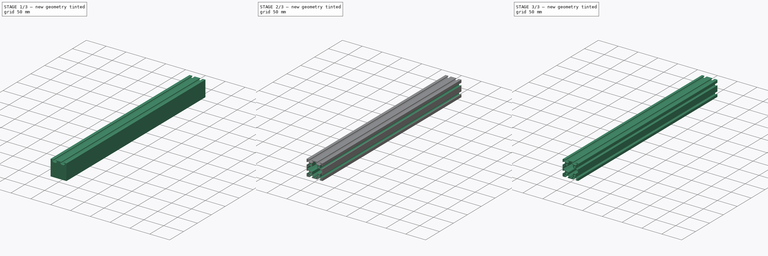
[diagram: build sequence overview — one tinted view per stage of 3, left to right]
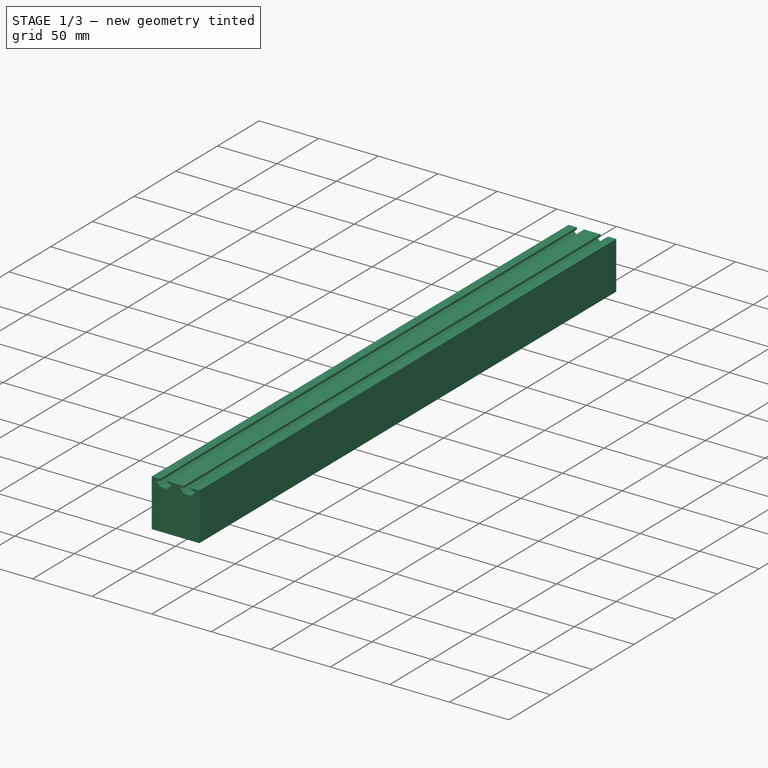
[diagram: stage 1 of 3 — iso view after this stage's code; geometry added in this stage tinted green]
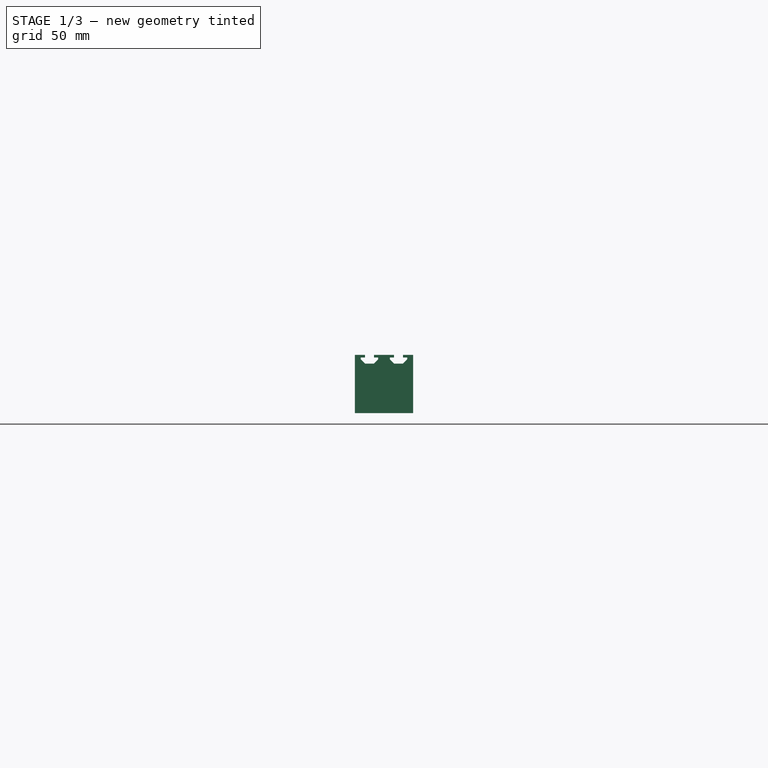
[diagram: stage 1 of 3 — front view after this stage's code; geometry added in this stage tinted green]
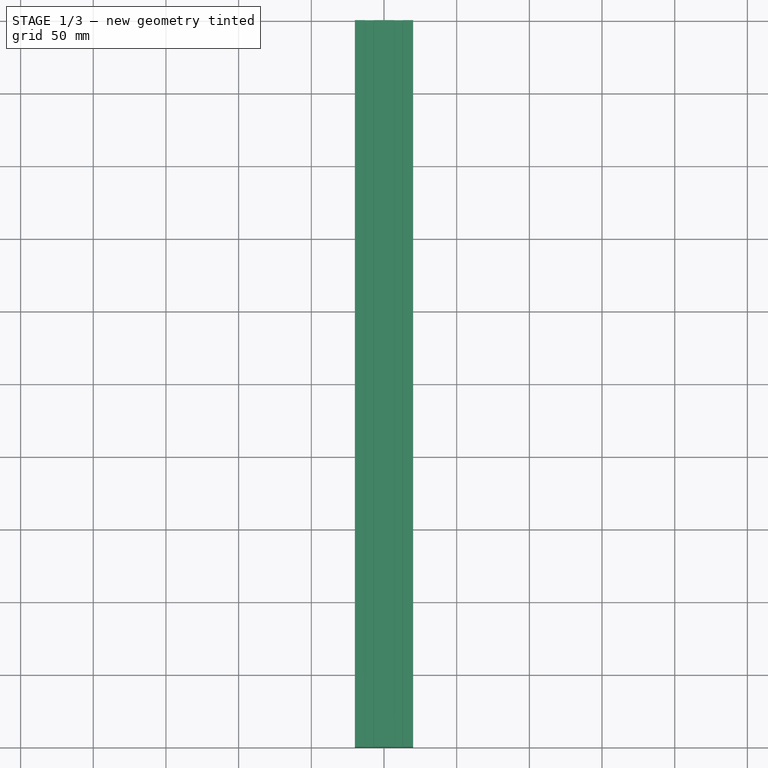
[diagram: stage 1 of 3 — top view after this stage's code; geometry added in this stage tinted green]
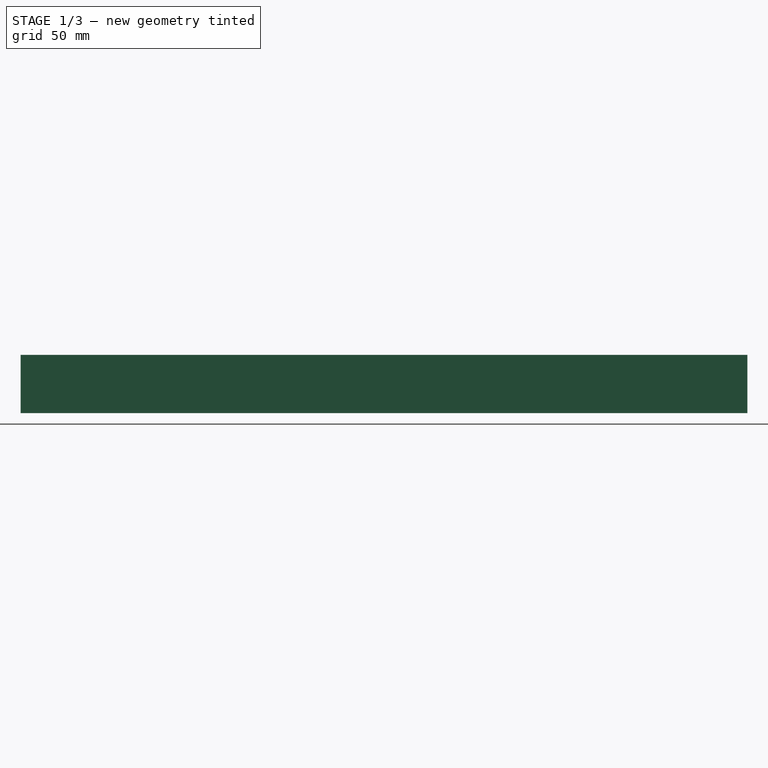
[diagram: stage 1 of 3 — right view after this stage's code; geometry added in this stage tinted green]
FCSTD DOCUMENT  (FreeCAD 0.21R33771 (Git))
Label: 4040 Extrusion
License: All rights reserved
LicenseURL: http://en.wikipedia.org/wiki/All_rights_reserved
objects: Sketcher::SketchObject×4, PartDesign::Pocket×3, PartDesign::Fillet×2, PartDesign::Pad×1, PartDesign::PolarPattern×1, PartDesign::Body×1
note: 18 computed .brp shape members not serialized (recipe doc carries the construction recipe); baked Part::Feature solids carry a one-line shape summary decoded from their .brp

FEATURE [Sketcher::SketchObject] Sketch012
  FullyConstrained = true
  MapMode = 5
  Placement = pos=(0,-250,5.6e-14) rot=(1,0,0;1.5708rad)
  sketch-geometry (8):
    g0: LineSegment StartX=-10 StartY=10 StartZ=0 EndX=10 EndY=10 EndZ=0
    g1: LineSegment StartX=10 StartY=10 StartZ=0 EndX=10 EndY=-10 EndZ=0
    g2: LineSegment StartX=10 StartY=-10 StartZ=0 EndX=-10 EndY=-10 EndZ=0
    g3: LineSegment StartX=-10 StartY=-10 StartZ=0 EndX=-10 EndY=10 EndZ=0
    g4: Circle CenterX=-10 CenterY=10 CenterZ=0 NormalX=0 NormalY=0 NormalZ=1 AngleXU=0 Radius=2.1
    g5: Circle CenterX=10 CenterY=10 CenterZ=0 NormalX=0 NormalY=0 NormalZ=1 AngleXU=0 Radius=2.1
    g6: Circle CenterX=10 CenterY=-10 CenterZ=0 NormalX=0 NormalY=0 NormalZ=1 AngleXU=0 Radius=2.1
    g7: Circle CenterX=-10 CenterY=-10 CenterZ=0 NormalX=0 NormalY=0 NormalZ=1 AngleXU=0 Radius=2.1
  constraints (19):
    c: Coincident(g0,g1)
    c: Coincident(g1,g2)
    c: Coincident(g2,g3)
    c: Coincident(g3,g0)
    c: Horizontal(g0)
    c: Horizontal(g2)
    c: Vertical(g1)
    c: Vertical(g3)
    c: Coincident(g4,g0)
    c: Coincident(g5,g0)
    c: Coincident(g6,g1)
    c: Coincident(g7,g2)
    c: Equal(g3,g0)
    c: Symmetric(g4,g6,g-1)
    c: DistanceX(g0,g0) = 20
    c: Equal(g7,g4)
    c: Equal(g4,g5)
    c: Equal(g5,g6)
    c: Diameter(g4) = 4.2
FEATURE [Sketcher::SketchObject] Sketch013
  FullyConstrained = true
  MapMode = 5
  Placement = pos=(0,0,0) rot=(1,0,0;1.5708rad)
  Support = -> [XZ_Plane008]
  sketch-geometry (4):
    g0: LineSegment StartX=-20 StartY=20 StartZ=0 EndX=20 EndY=20 EndZ=0
    g1: LineSegment StartX=20 StartY=20 StartZ=0 EndX=20 EndY=-20 EndZ=0
    g2: LineSegment StartX=20 StartY=-20 StartZ=0 EndX=-20 EndY=-20 EndZ=0
    g3: LineSegment StartX=-20 StartY=-20 StartZ=0 EndX=-20 EndY=20 EndZ=0
  constraints (11):
    c: Coincident(g0,g1)
    c: Coincident(g1,g2)
    c: Coincident(g2,g3)
    c: Coincident(g3,g0)
    c: Horizontal(g0)
    c: Horizontal(g2)
    c: Vertical(g1)
    c: Vertical(g3)
    c: Symmetric(g0,g1,g-1)
    c: Equal(g0,g3)
    c: DistanceX(g0,g0) = 40
FEATURE [PartDesign::Pad] Pad007
  Direction = (0,-1,-2e-16)
  Length = 500
  Length2 = 10
  Midplane = true
  Placement = pos=(0,0,0) rot=(1,0,0;1.5708rad)
  Profile = -> Sketch013
  ReferenceAxis = -> Sketch013 [N_Axis]
  Type = 0
FEATURE [Sketcher::SketchObject] Sketch014
  AttachmentOffset = pos=(-10,0,0) rot=(0,0,1;0rad)
  FullyConstrained = true
  MapMode = 5
  Placement = pos=(-10,0,0) rot=(1,0,0;1.5708rad)
  Support = -> [XZ_Plane008]
  sketch-geometry (23):
    g0: LineSegment StartX=-3.1 StartY=21 StartZ=0 EndX=3.1 EndY=21 EndZ=0
    g1: LineSegment StartX=3.1 StartY=21 StartZ=0 EndX=3.1 EndY=18.2 EndZ=0
    g2: LineSegment StartX=-3.1 StartY=18.2 StartZ=0 EndX=-3.1 EndY=21 EndZ=0
    g3: LineSegment StartX=-3.1 StartY=18.2 StartZ=0 EndX=-6 EndY=18.2 EndZ=0
    g4: LineSegment StartX=-6 StartY=18.2 StartZ=0 EndX=-6 EndY=17.0607 EndZ=0
    g5: LineSegment StartX=-6 StartY=17.0607 StartZ=0 EndX=-2.93934 EndY=14 EndZ=0
    g6: LineSegment StartX=-2.93934 StartY=14 StartZ=0 EndX=2.93934 EndY=14 EndZ=0
    g7: LineSegment StartX=2.93934 StartY=14 StartZ=0 EndX=6 EndY=17.0607 EndZ=0
    g8: LineSegment StartX=6 StartY=17.0607 StartZ=0 EndX=6 EndY=18.2 EndZ=0
    g9: LineSegment StartX=6 StartY=18.2 StartZ=0 EndX=3.1 EndY=18.2 EndZ=0
    g10: LineSegment StartX=-3.1 StartY=20 StartZ=0 EndX=3.1 EndY=20 EndZ=0
    g11: LineSegment StartX=0 StartY=10 StartZ=0 EndX=-10 EndY=20 EndZ=0
    g12: LineSegment StartX=-6 StartY=17.0607 StartZ=0 EndX=-6.53033 EndY=16.5303 EndZ=0
    g13: LineSegment StartX=16.9 StartY=21 StartZ=0 EndX=16.9 EndY=18.2 EndZ=0
    g14: LineSegment StartX=16.9 StartY=18.2 StartZ=0 EndX=14 EndY=18.2 EndZ=0
    g15: LineSegment StartX=14 StartY=18.2 StartZ=0 EndX=14 EndY=17.0607 EndZ=0
    g16: LineSegment StartX=14 StartY=17.0607 StartZ=0 EndX=17.0607 EndY=14 EndZ=0
    g17: LineSegment StartX=17.0607 StartY=14 StartZ=0 EndX=22.9393 EndY=14 EndZ=0
    g18: LineSegment StartX=22.9393 StartY=14 StartZ=0 EndX=26 EndY=17.0607 EndZ=0
    g19: LineSegment StartX=26 StartY=17.0607 StartZ=0 EndX=26 EndY=18.2 EndZ=0
    g20: LineSegment StartX=26 StartY=18.2 StartZ=0 EndX=23.1 EndY=18.2 EndZ=0
    g21: LineSegment StartX=23.1 StartY=18.2 StartZ=0 EndX=23.1 EndY=21 EndZ=0
    g22: LineSegment StartX=23.1 StartY=21 StartZ=0 EndX=16.9 EndY=21 EndZ=0
  constraints (70):
    c: Coincident(g0,g1)
    c: Coincident(g2,g0)
    c: Vertical(g1)
    c: Vertical(g2)
    c: Horizontal(g3)
    c: Coincident(g3,g4)
    c: Vertical(g4)
    c: Coincident(g4,g5)
    c: Coincident(g5,g6)
    c: Horizontal(g6)
    c: Coincident(g6,g7)
    c: Coincident(g7,g8)
    c: Vertical(g8)
    c: Coincident(g8,g9)
    c: Coincident(g9,g1)
    c: Horizontal(g9)
    c: Symmetric(g0,g0,g-2)
    c: DistanceX(g0,g0) = 6.2
    c: Coincident(g2,g3)
    c: Equal(g3,g9)
    c: Equal(g2,g1)
    c: Equal(g4,g8)
    c: Perpendicular(g5,g7)
    c: Equal(g5,g7)
    c: PointOnObject(g10,g2)
    c: PointOnObject(g10,g1)
    c: Horizontal(g10)
    c: DistanceY(g-1,g10) = 20
    c: DistanceY(g1,g10) = 1.8
    c: DistanceX(g3,g8) = 12
    c: DistanceY(g6,g10) = 6
    c: PointOnObject(g11,g-2)
    c: Horizontal(g11,g10)
    c: Parallel(g11,g5)
    c: DistanceX(g11,g-1) = 10
    c: Coincident(g12,g4)
    c: PointOnObject(g12,g11)
    c: Perpendicular(g11,g12)
    c: Distance(g12) = 0.75
    c: DistanceY(g10,g0) = 1
    c: Vertical(g13)
    c: Coincident(g13,g14)
    c: Horizontal(g14)
    c: Coincident(g14,g15)
    c: Vertical(g15)
    c: Coincident(g15,g16)
    c: Coincident(g16,g17)
    c: Horizontal(g17)
    c: Coincident(g17,g18)
    c: Coincident(g18,g19)
    c: Vertical(g19)
    c: Coincident(g19,g20)
    c: Horizontal(g20)
    c: Coincident(g20,g21)
    c: Vertical(g21)
    c: Coincident(g21,g22)
    c: Coincident(g22,g13)
    c: Horizontal(g22)
    c: Equal(g13,g1)
    c: Horizontal(g13,g0)
    c: Equal(g15,g19)
    c: Equal(g19,g8)
    c: Equal(g14,g20)
    c: Equal(g20,g9)
    c: Equal(g22,g0)
    c: Equal(g18,g16)
    c: Equal(g16,g7)
    c: Equal(g17,g6)
    c: DistanceX(g0,g13) = 20
    c: Equal(g21,g13)
FEATURE [PartDesign::Pocket] Pocket006
  BaseFeature = -> Pad007
  Direction = (0,1,2e-16)
  Length = 5
  Length2 = 5
  Midplane = true
  Placement = pos=(0,0,0) rot=(1,0,0;1.5708rad)
  Profile = -> Sketch014
  ReferenceAxis = -> Sketch014 [N_Axis]
  Type = 1
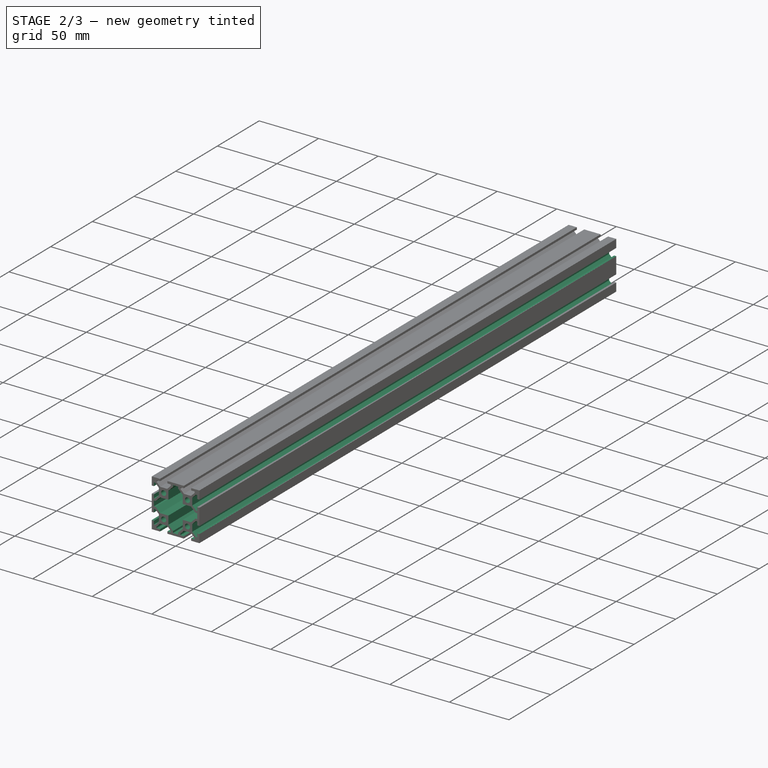
[diagram: stage 2 of 3 — iso view after this stage's code; geometry added in this stage tinted green]
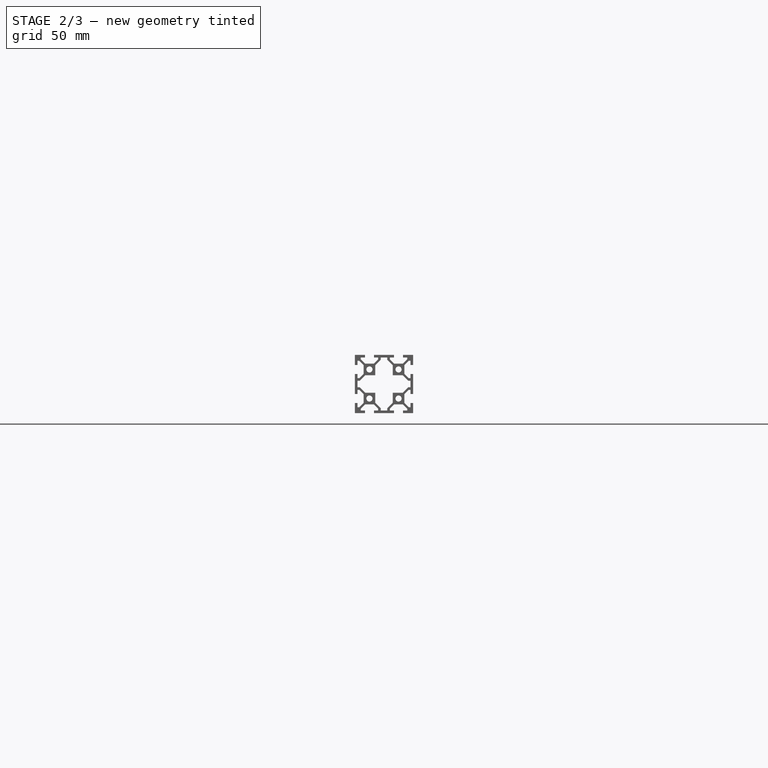
[diagram: stage 2 of 3 — front view after this stage's code; geometry added in this stage tinted green]
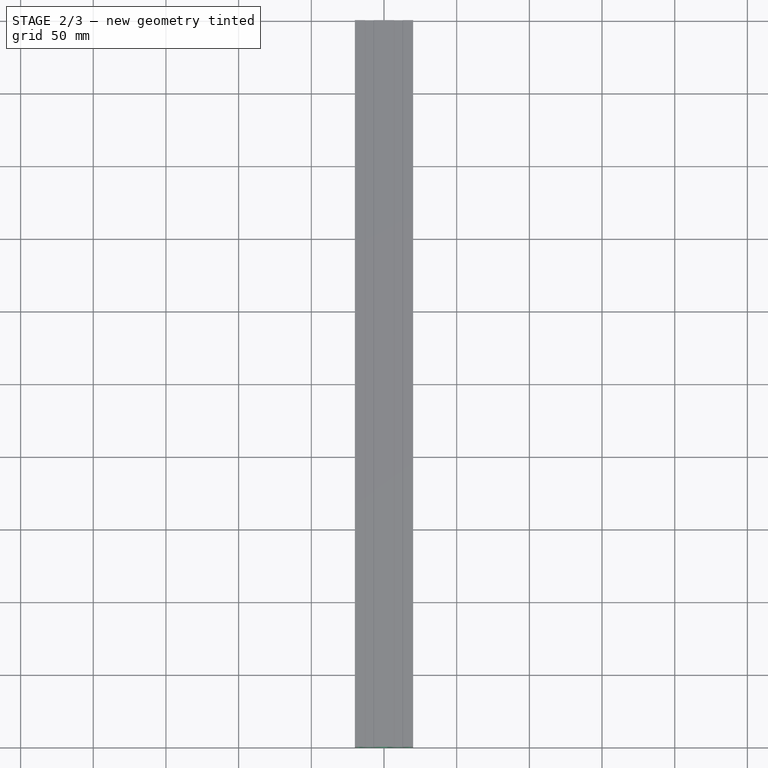
[diagram: stage 2 of 3 — top view after this stage's code; geometry added in this stage tinted green]
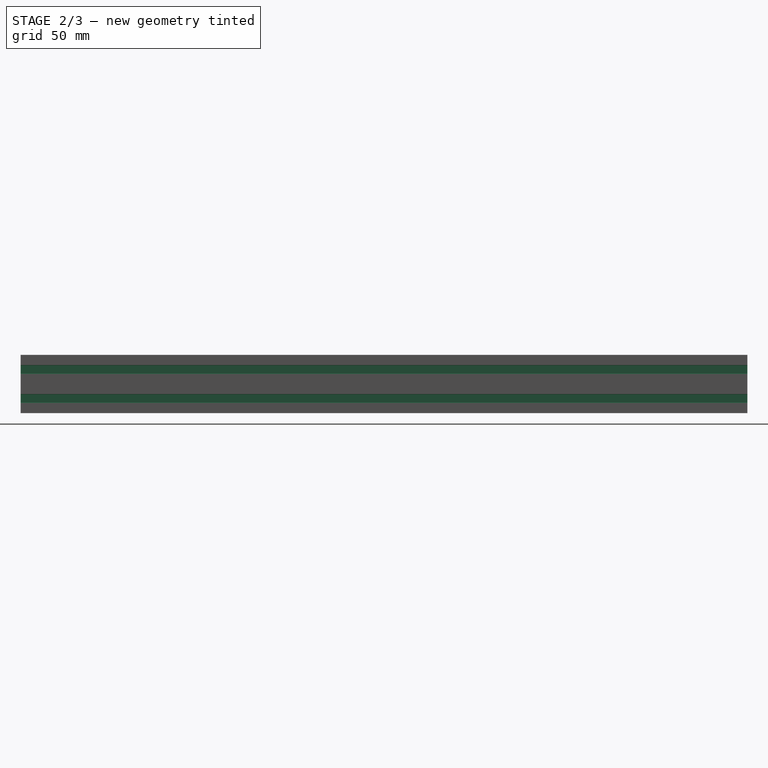
[diagram: stage 2 of 3 — right view after this stage's code; geometry added in this stage tinted green]
FEATURE [PartDesign::PolarPattern] PolarPattern001
  Angle = 360
  Axis = -> Y_Axis008
  BaseFeature = -> Pocket006
  Occurrences = 4
  Originals = -> [Pocket006]
  Placement = pos=(0,0,0) rot=(1,0,0;1.5708rad)
FEATURE [Sketcher::SketchObject] Sketch015
  ExternalGeometry = -> [PolarPattern001]
  FullyConstrained = true
  MapMode = 5
  Placement = pos=(0,0,0) rot=(1,0,0;1.5708rad)
  Support = -> [XZ_Plane008]
  sketch-geometry (30):
    g0: LineSegment StartX=2.2 StartY=18.2 StartZ=0 EndX=-2.2 EndY=18.2 EndZ=0
    g1: LineSegment StartX=-2.2 StartY=18.2 StartZ=0 EndX=-2.2 EndY=16.7393 EndZ=0
    g2: LineSegment StartX=-2.2 StartY=16.7393 StartZ=0 EndX=-6 EndY=12.9393 EndZ=0
    g3: LineSegment StartX=-6 StartY=12.9393 StartZ=0 EndX=-6 EndY=6 EndZ=0
    g4: LineSegment StartX=-6 StartY=6 StartZ=0 EndX=-12.9393 EndY=6 EndZ=0
    g5: LineSegment StartX=-12.9393 StartY=6 StartZ=0 EndX=-16.7393 EndY=2.2 EndZ=0
    g6: LineSegment StartX=-16.7393 StartY=2.2 StartZ=0 EndX=-18.2 EndY=2.2 EndZ=0
    g7: LineSegment StartX=-18.2 StartY=2.2 StartZ=0 EndX=-18.2 EndY=-2.2 EndZ=0
    g8: LineSegment StartX=-18.2 StartY=-2.2 StartZ=0 EndX=-16.7393 EndY=-2.2 EndZ=0
    g9: LineSegment StartX=-16.7393 StartY=-2.2 StartZ=0 EndX=-12.9393 EndY=-6 EndZ=0
    g10: LineSegment StartX=-12.9393 StartY=-6 StartZ=0 EndX=-6 EndY=-6 EndZ=0
    g11: LineSegment StartX=-6 StartY=-6 StartZ=0 EndX=-6 EndY=-12.9393 EndZ=0
    g12: LineSegment StartX=-6 StartY=-12.9393 StartZ=0 EndX=-2.2 EndY=-16.7393 EndZ=0
    g13: LineSegment StartX=-2.2 StartY=-16.7393 StartZ=0 EndX=-2.2 EndY=-18.2 EndZ=0
    g14: LineSegment StartX=-2.2 StartY=-18.2 StartZ=0 EndX=2.2 EndY=-18.2 EndZ=0
    g15: LineSegment StartX=2.2 StartY=-18.2 StartZ=0 EndX=2.2 EndY=-16.7393 EndZ=0
    g16: LineSegment StartX=2.2 StartY=-16.7393 StartZ=0 EndX=6 EndY=-12.9393 EndZ=0
    g17: LineSegment StartX=6 StartY=-12.9393 StartZ=0 EndX=6 EndY=-6 EndZ=0
    g18: LineSegment StartX=6 StartY=-6 StartZ=0 EndX=12.9393 EndY=-6 EndZ=0
    g19: LineSegment StartX=12.9393 StartY=-6 StartZ=0 EndX=16.7393 EndY=-2.2 EndZ=0
    g20: LineSegment StartX=16.7393 StartY=-2.2 StartZ=0 EndX=18.2 EndY=-2.2 EndZ=0
    g21: LineSegment StartX=18.2 StartY=-2.2 StartZ=0 EndX=18.2 EndY=2.2 EndZ=0
    g22: LineSegment StartX=18.2 StartY=2.2 StartZ=0 EndX=16.7393 EndY=2.2 EndZ=0
    g23: LineSegment StartX=16.7393 StartY=2.2 StartZ=0 EndX=12.9393 EndY=6 EndZ=0
    g24: LineSegment StartX=12.9393 StartY=6 StartZ=0 EndX=6 EndY=6 EndZ=0
    g25: LineSegment StartX=6 StartY=6 StartZ=0 EndX=6 EndY=12.9393 EndZ=0
    g26: LineSegment StartX=6 StartY=12.9393 StartZ=0 EndX=2.2 EndY=16.7393 EndZ=0
    g27: LineSegment StartX=2.2 StartY=16.7393 StartZ=0 EndX=2.2 EndY=18.2 EndZ=0
    g28: LineSegment StartX=-17.0607 StartY=4 StartZ=0 EndX=-16 EndY=2.93934 EndZ=0
    g29: LineSegment StartX=-14 StartY=12.9393 StartZ=0 EndX=-12.9393 EndY=14 EndZ=0
  constraints (88):
    c: Horizontal(g0)
    c: Coincident(g0,g1)
    c: Coincident(g1,g2)
    c: Coincident(g2,g3)
    c: Vertical(g3)
    c: Coincident(g3,g4)
    c: Coincident(g4,g5)
    c: Coincident(g5,g6)
    c: Coincident(g6,g7)
    c: Vertical(g7)
    c: Coincident(g7,g8)
    c: Coincident(g8,g9)
    c: Coincident(g9,g10)
    c: Coincident(g10,g11)
    c: Vertical(g11)
    c: Coincident(g11,g12)
    c: Coincident(g12,g13)
    c: Coincident(g13,g14)
    c: Coincident(g14,g15)
    c: Coincident(g15,g16)
    c: Coincident(g16,g17)
    c: Vertical(g17)
    c: Coincident(g17,g18)
    c: Horizontal(g18)
    c: Coincident(g18,g19)
    c: Coincident(g19,g20)
    c: Coincident(g20,g21)
    c: Coincident(g21,g22)
    c: Horizontal(g22)
    c: Coincident(g22,g23)
    c: Coincident(g23,g24)
    c: Horizontal(g24)
    c: Coincident(g24,g25)
    c: Vertical(g25)
    c: Coincident(g25,g26)
    c: Coincident(g26,g27)
    c: Coincident(g27,g0)
    c: Vertical(g27)
    c: Vertical(g1)
    c: Vertical(g15)
    c: Vertical(g13)
    c: Horizontal(g20)
    c: Horizontal(g4)
    c: Horizontal(g10)
    c: Equal(g11,g17)
    c: Equal(g17,g18)
    c: Equal(g18,g10)
    c: Equal(g10,g4)
    c: Equal(g4,g25)
    c: Equal(g25,g24)
    c: Equal(g26,g2)
    c: Equal(g2,g5)
    c: Equal(g5,g9)
    c: Equal(g9,g12)
    c: Equal(g12,g16)
    c: Equal(g16,g19)
    c: Equal(g19,g23)
    c: Vertical(g21)
    c: Horizontal(g6)
    c: Parallel(g5,g-6)
    c: Parallel(g16,g19)
    c: Parallel(g19,g2)
    c: Parallel(g2,g5)
    c: Horizontal(g8)
    c: Equal(g6,g8)
    c: Equal(g8,g22)
    c: Equal(g22,g20)
    c: Equal(g20,g27)
    c: Equal(g27,g1)
    c: Equal(g1,g13)
    c: Equal(g13,g15)
    c: Horizontal(g14)
    c: Perpendicular(g9,g5)
    c: Parallel(g26,g23)
    c: Parallel(g23,g12)
    c: Parallel(g12,g9)
    c: PointOnObject(g0,g-7)
    c: Equal(g7,g0)
    c: Equal(g0,g21)
    c: Symmetric(g17,g3,g-1)
    c: DistanceY(g6,g-8) = 1.8
    c: Coincident(g28,g-6)
    c: PointOnObject(g28,g5)
    c: Perpendicular(g-6,g28)
    c: Coincident(g29,g-4)
    c: Coincident(g29,g-5)
    c: Equal(g29,g28)
    c: DistanceX(g29,g2) = 8
FEATURE [PartDesign::Pocket] Pocket007
  BaseFeature = -> PolarPattern001
  Direction = (0,1,2e-16)
  Length = 5
  Length2 = 5
  Midplane = true
  Placement = pos=(0,0,0) rot=(1,0,0;1.5708rad)
  Profile = -> Sketch015
  ReferenceAxis = -> Sketch015 [N_Axis]
  Type = 1
FEATURE [PartDesign::Pocket] Pocket005
  BaseFeature = -> Pocket007
  Direction = (0,1,-2e-16)
  Length = 5
  Length2 = 5
  Placement = pos=(0,0,0) rot=(1,0,0;1.5708rad)
  Profile = -> Sketch012
  ReferenceAxis = -> Sketch012 [N_Axis]
  Type = 1
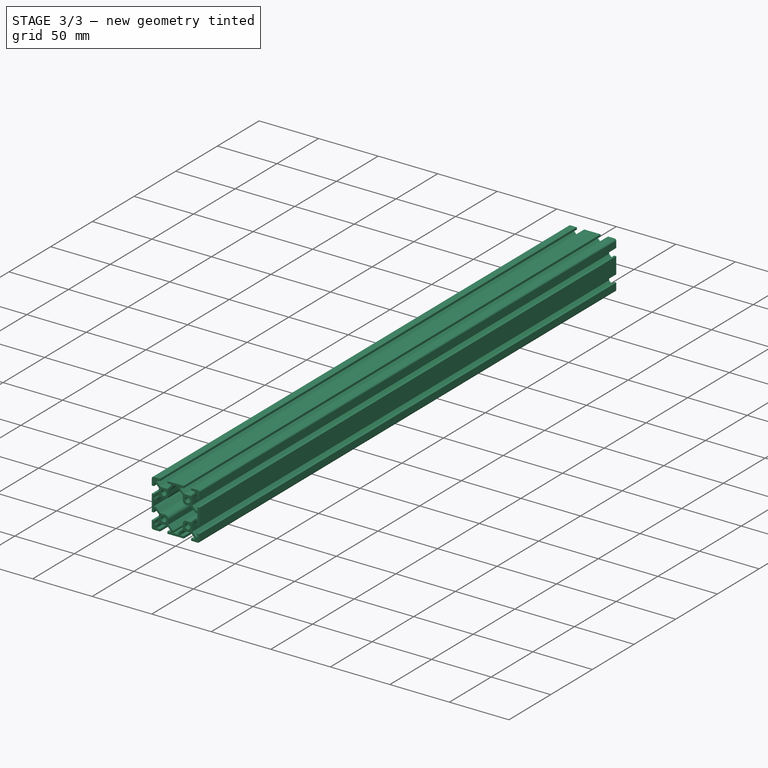
[diagram: stage 3 of 3 — iso view after this stage's code; geometry added in this stage tinted green]
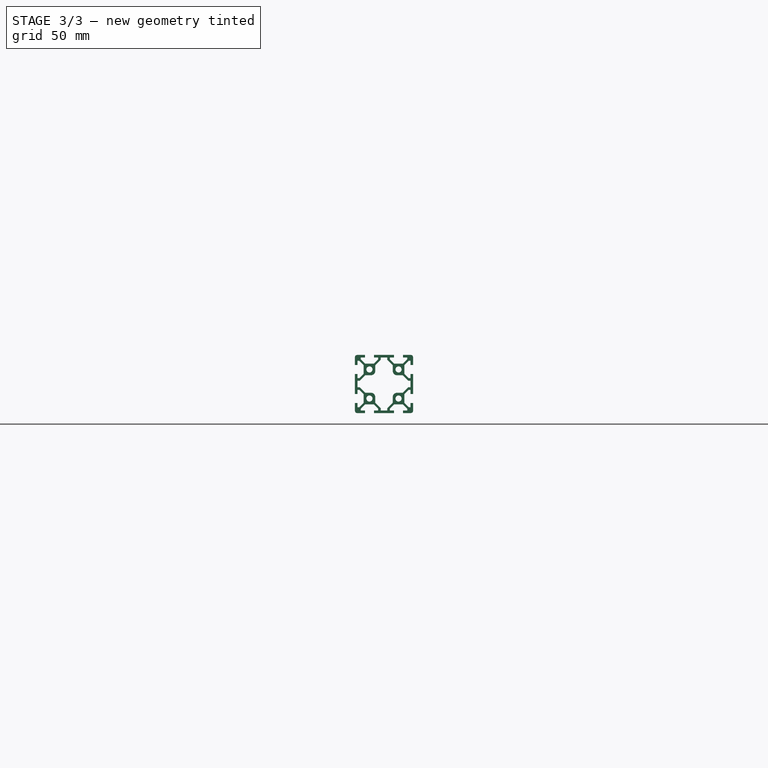
[diagram: stage 3 of 3 — front view after this stage's code; geometry added in this stage tinted green]
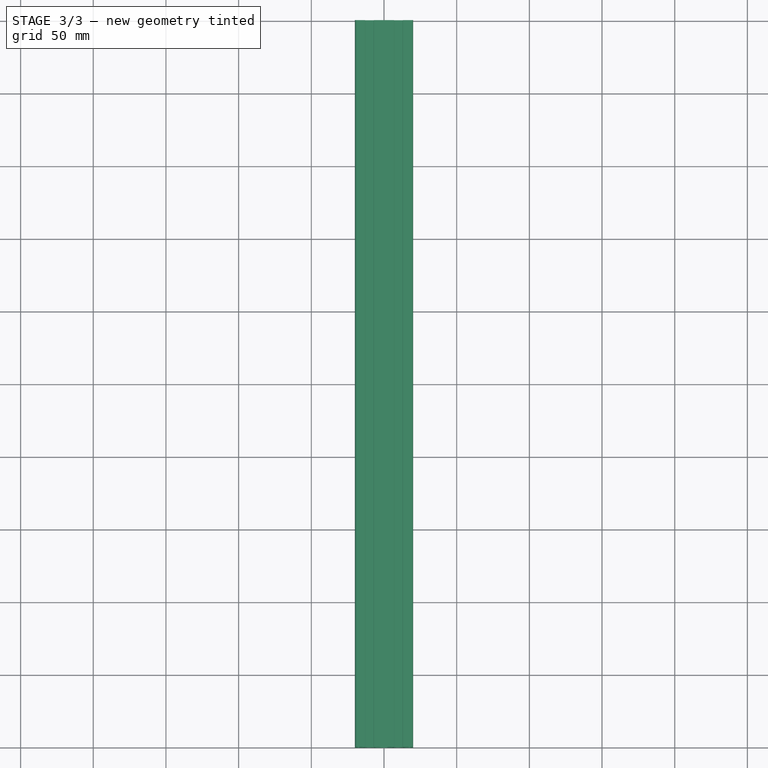
[diagram: stage 3 of 3 — top view after this stage's code; geometry added in this stage tinted green]
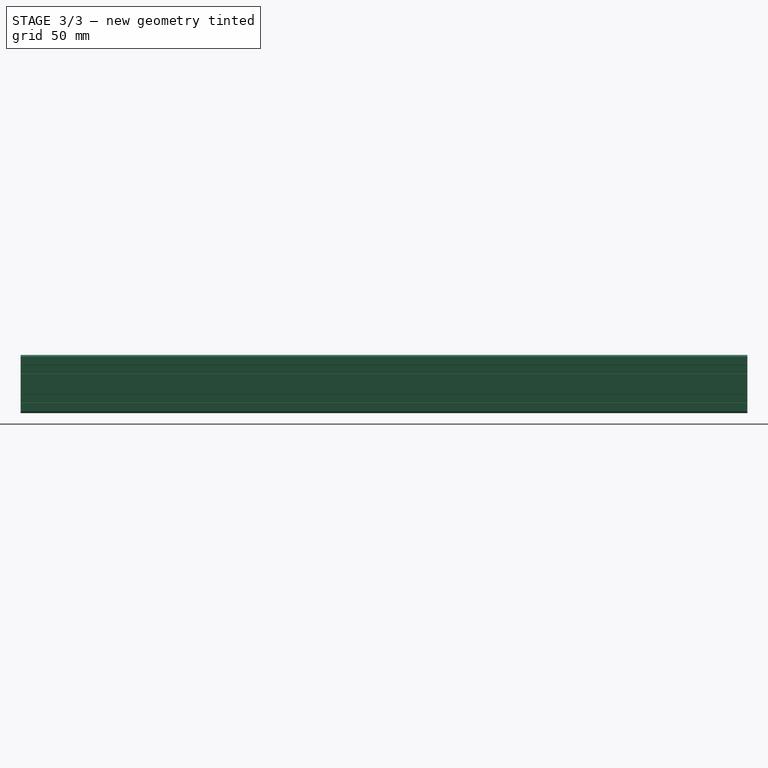
[diagram: stage 3 of 3 — right view after this stage's code; geometry added in this stage tinted green]
FEATURE [PartDesign::Fillet] Fillet002
  Base = -> Pocket005 [Edge4,Edge277,Edge237,Edge315]
  BaseFeature = -> Pocket005
  Placement = pos=(0,0,0) rot=(1,0,0;1.5708rad)
  Radius = 1.5
  SupportTransform = false
  UseAllEdges = false
FEATURE [PartDesign::Fillet] Fillet003
  Base = -> Fillet002 [Edge338,Edge352,Edge353,Edge339]
  BaseFeature = -> Fillet002
  Placement = pos=(0,0,0) rot=(1,0,0;1.5708rad)
  Radius = 3
  SupportTransform = false
  UseAllEdges = false
FEATURE [PartDesign::Body] Body008
  Group = -> [Sketch013,Pad007,Sketch014,Pocket006,PolarPattern001,Sketch015,Pocket007,Sketch012,Pocket005,Fillet002,Fillet003]
  Origin = -> Origin008
  Placement = pos=(0,0,-30) rot=(0,0,1;0rad)
  Tip = -> Fillet003
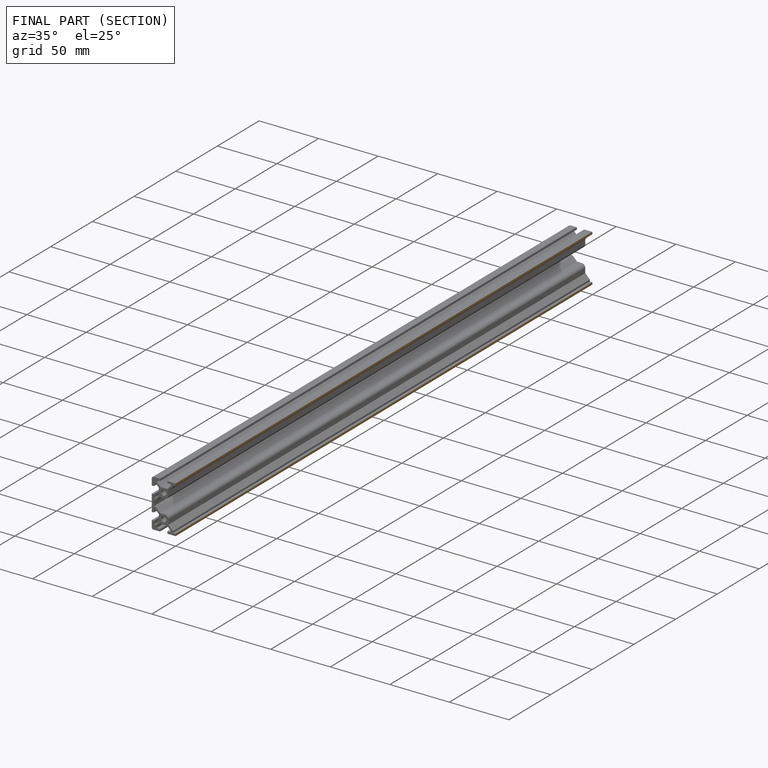
[diagram: finished part — half-section view (interior)]
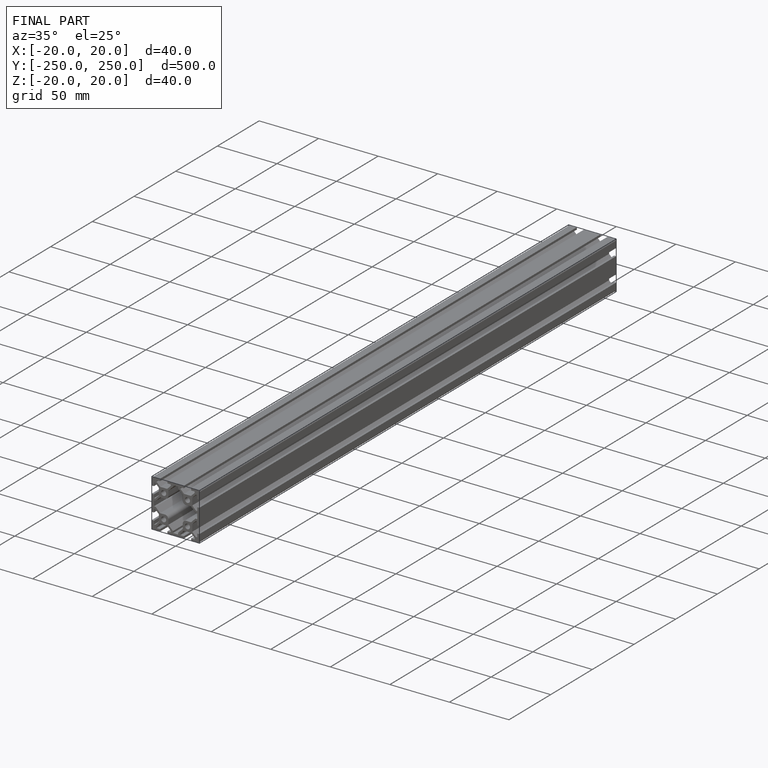
[diagram: finished part — iso view with bounding-box wireframe]
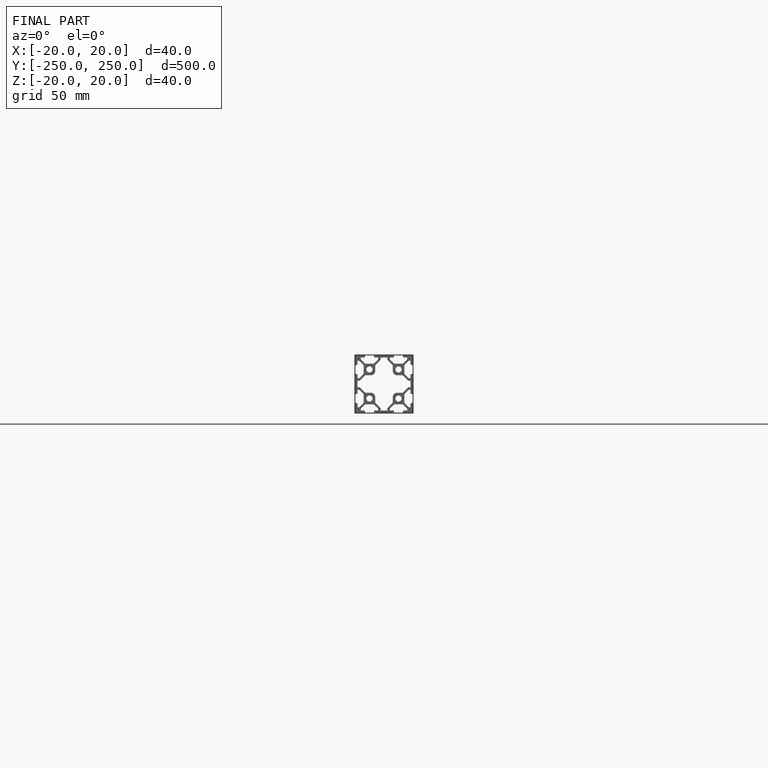
[diagram: finished part — front view with bounding-box wireframe]
